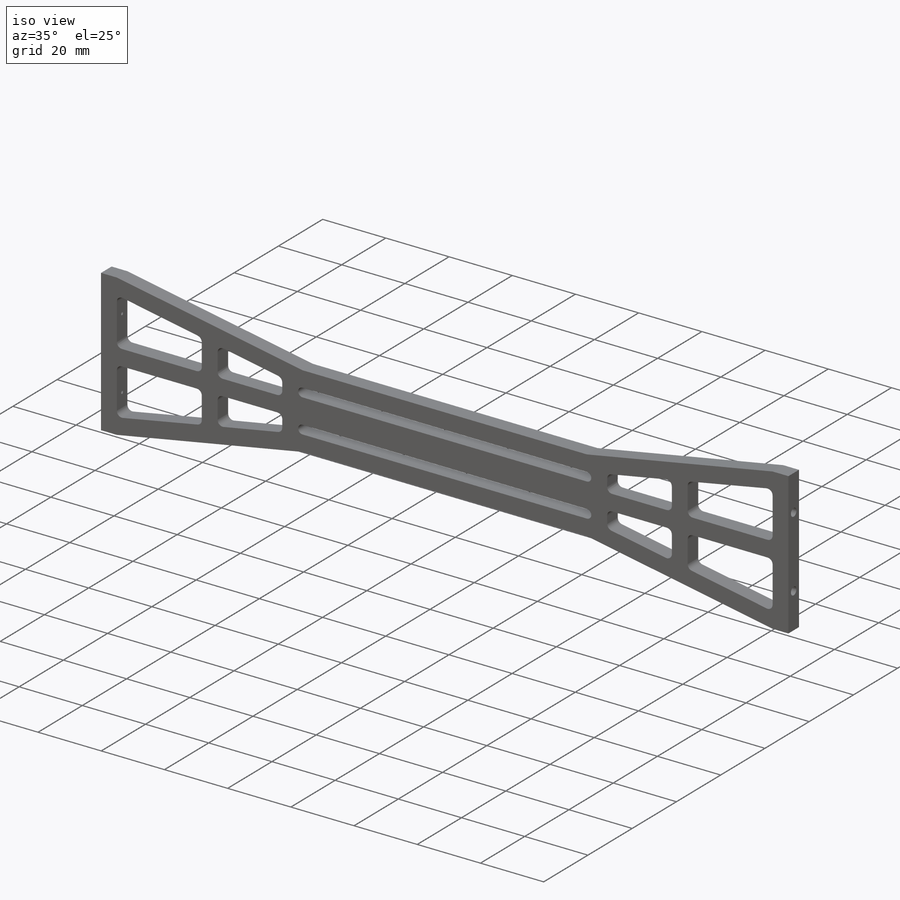
[diagram: iso view]
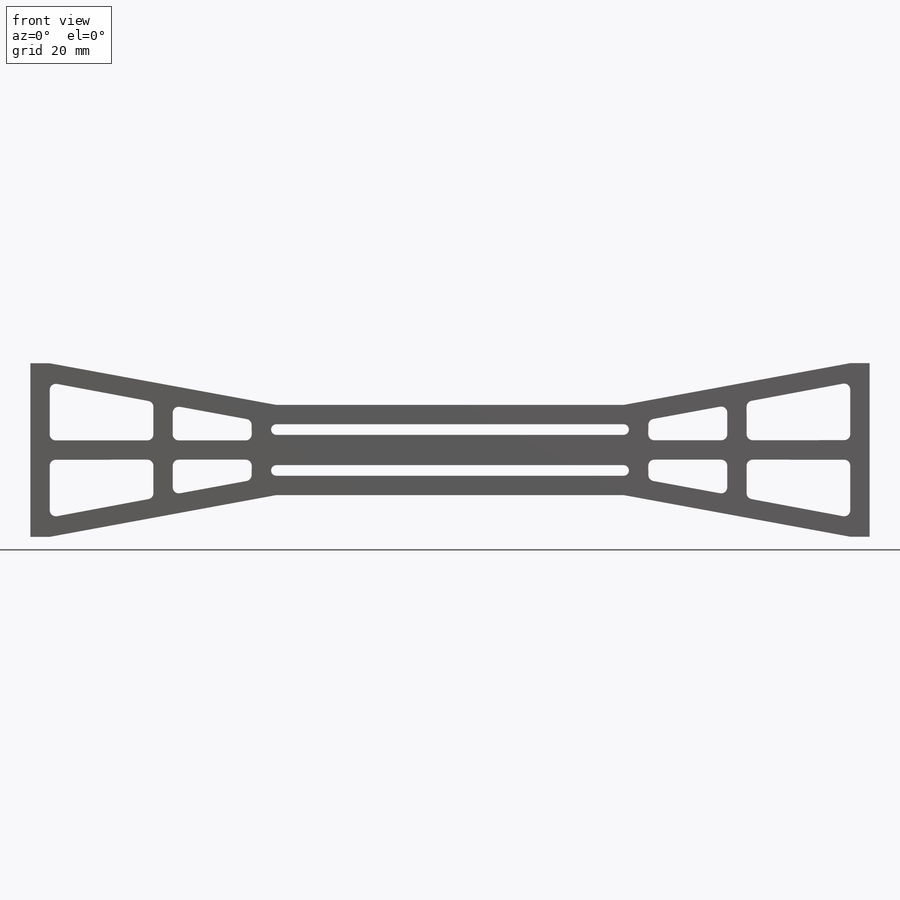
[diagram: front view]
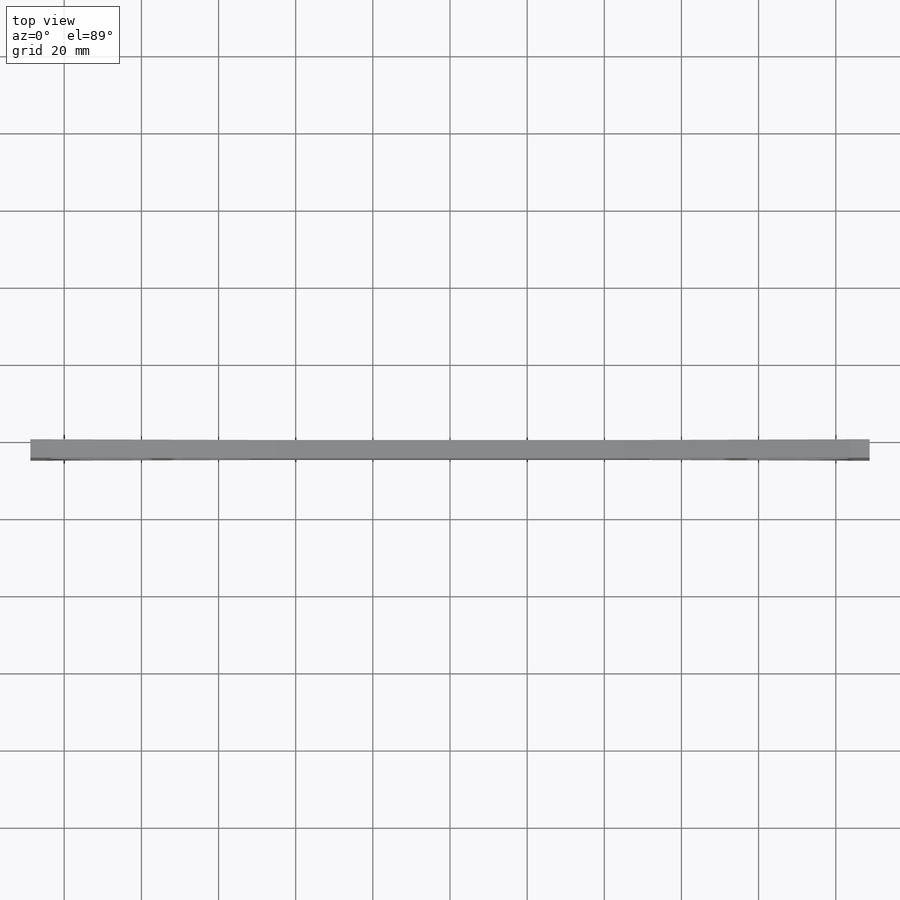
[diagram: top view]
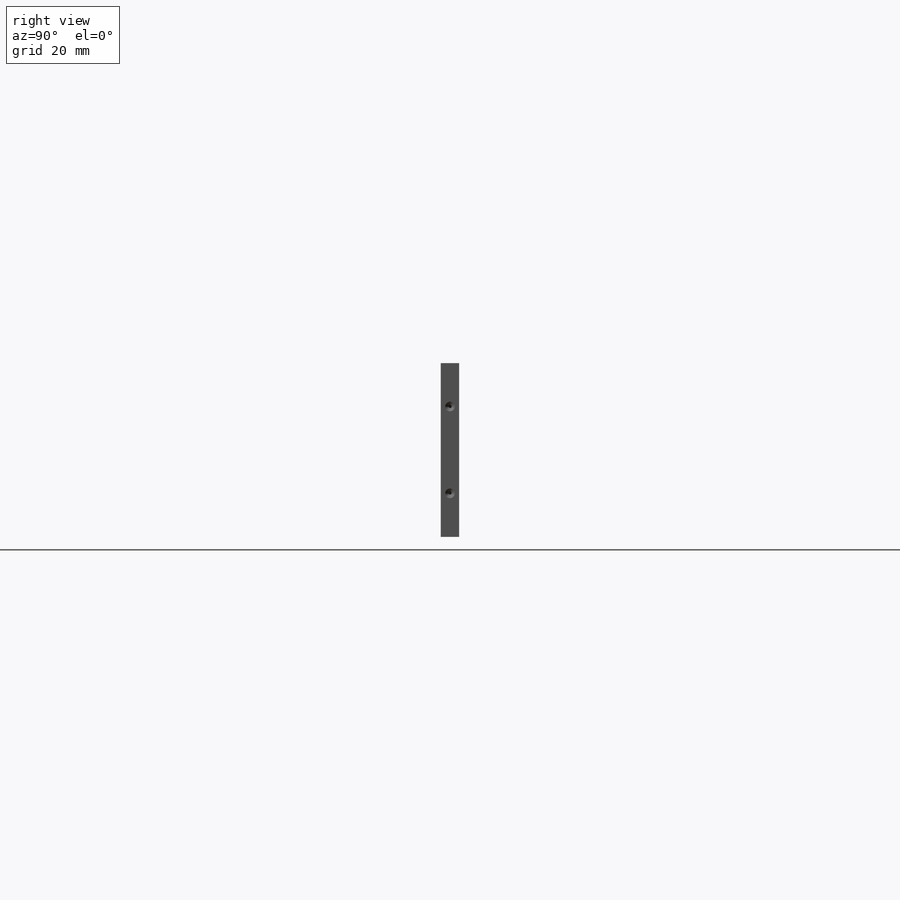
[diagram: right view]
SOLIDWORKS PART (.sldprt)
format: sldprt  version: not decoded by parser v0  size: 478,720 bytes
history: native  units: mm
features: sketch x5, hole x2, material x1, extrude x1 (+13 scaffold rows collapsed)
feature tree (22):
  scaffold x13  (default folders/planes/origin — collapsed)
  material  "6061-T6 (SS)"
  sketch  "Sketch3"  dims[c1.D1=~1.508472mm c1.D2=~2.434589mm c2.D1=1.5875mm c2.D2=1.5875mm c2.D3=1.5875mm c2.D4=1.45mm c2.D5=~3.218482mm c2.D7=1.5875mm c3.D1=5.0mm c3.D2=5.0mm c3.D3=45.0mm c4.D1=58.3mm c4.D2=58.3mm c5.D1=5.0mm c5.D2=5.0mm c5.D3=5.0mm c5.D4=5.0mm c6.D1=15.0mm c6.D2=58.4mm c7.D1=58.3mm c7.D2=58.3mm c7.D3=58.3mm c7.D4=58.3mm c7.D5=~23.896699mm c8.D1=135.0deg c9.D1=1.25mm c9.D2=1.25mm c9.D3=1.25mm c10.D2=1.25mm c10.D1=5.0mm c11.D2=~23.869516mm c12.D2=~0.130835deg c13.D2=55.0mm c14.D2=~0.130835deg c15.D2=5.0mm c15.D3=5.0mm c15.D4=5.0mm c15.D5=5.0mm c15.D6=5.0mm c15.D7=5.0mm c15.D8=5.0mm c15.D9=5.0mm c16.D2=15.0mm c16.D1=55.0mm c17.D1=~0.130835deg c18.D1=5.0mm c18.D2=24.35mm c19.D2=~0.269592deg c20.D2=53.3mm c21.D2=~0.269592deg c22.D2=24.35mm c23.D2=~0.269592deg c24.D2=53.3mm c25.D2=~0.269592deg c26.D2=53.3mm c27.D2=~1.853666deg c28.D2=53.3mm c29.D2=~1.188993deg c30.D2=5.0mm c30.D3=5.0mm c30.D4=~4.107239mm c30.D1=1.37mm c31.D1=135.0deg c32.D1=5.0mm c32.D2=5.0mm c33.D1=4.11mm c33.D2=4.11mm c34.D1=5.0mm c34.D2=53.3mm c35.D1=4.05mm c35.D2=~4.053301mm c36.D1=~11.957934mm c37.D1=~0.028169deg c38.D1=~11.957934mm c38.D2=45.0mm c38.D3=~54.423377mm c39.D2=45.0mm c39.D3=217.526mm c39.D1=5.0mm c39.D4=5.0mm c39.D5=5.0mm c39.D6=5.0mm c39.D7=5.0mm c39.D8=5.0mm c39.D9=5.0mm c40.D7=5.0mm c40.D10=5.0mm c40.D11=5.0mm c40.D12=5.0mm c40.D13=5.0mm c40.D14=5.0mm c40.D15=5.0mm c40.D16=5.0mm c40.D17=2.5mm c40.D18=2.5mm c40.D19=2.5mm c40.D20=5.0mm c40.D21=2.5mm c40.D22=5.0mm c40.D23=5.0mm]
  extrude  "Boss-Extrude1"  Depth=4.763mm
  hole  "Tap Drill for M3x0.5 Tap1"  Diameter=2.5mm Depth=5.007016mm
  sketch  "Sketch8"  dims[c1.D1=11.25mm c1.D2=11.25mm c2.D1=11.25mm c2.D2=11.25mm]
  sketch  "Sketch7"  dims[hole-wizard template sketch: 60 standard entries collapsed; hole parameters kept: c18.Thru Hole Depth=~5.007016mm]
  hole  "Tap Drill for M3x0.5 Tap2"  Diameter=2.5mm Depth=5mm
  sketch  "Sketch10"  dims[c1.D1=11.25mm c1.D2=11.25mm c2.D1=11.25mm c2.D2=11.25mm]
  sketch  "Sketch9"  dims[hole-wizard template sketch: 60 standard entries collapsed; hole parameters kept: c18.Thru Hole Depth=5.0mm]
decode coverage: 8 of 8 modeling features carry decoded parameters
note: ~ marks probable driven/reference dimensions
note: suppression state not decoded; provenance and decode notes live in map.json
